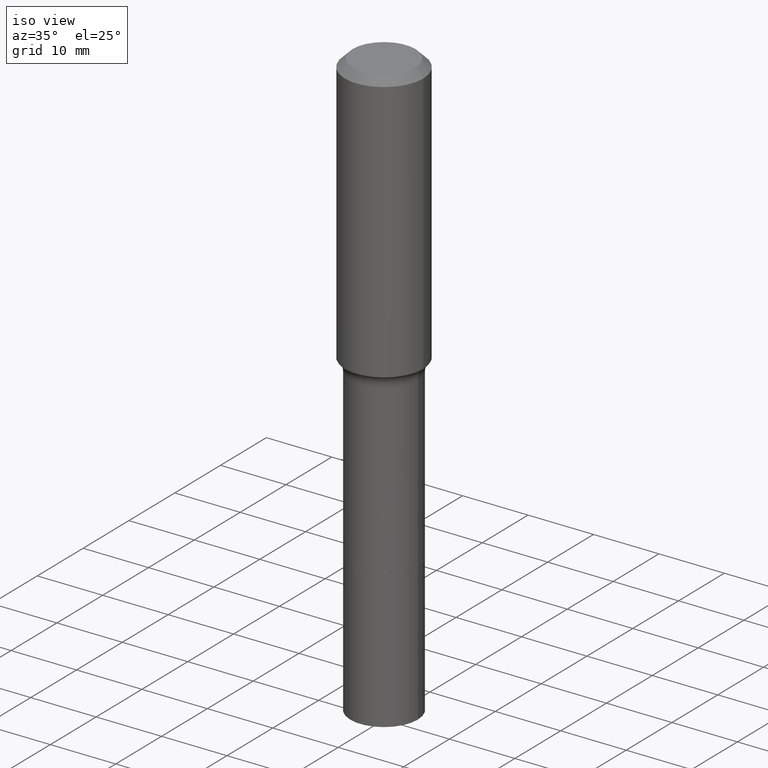
[diagram: clean part render]
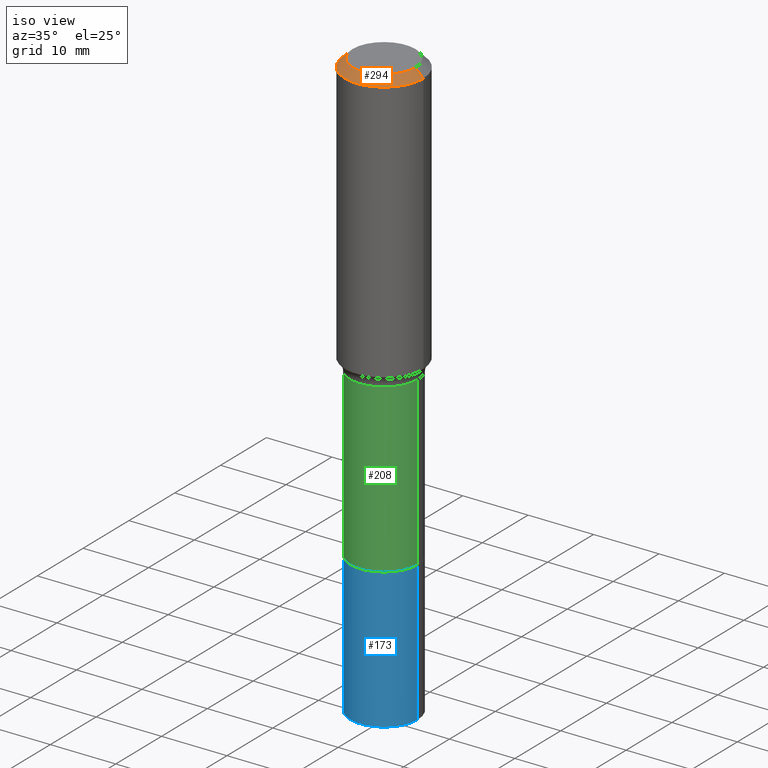
[diagram: same view with three faces highlighted in distinct colors, each labeled with its STEP entity id]
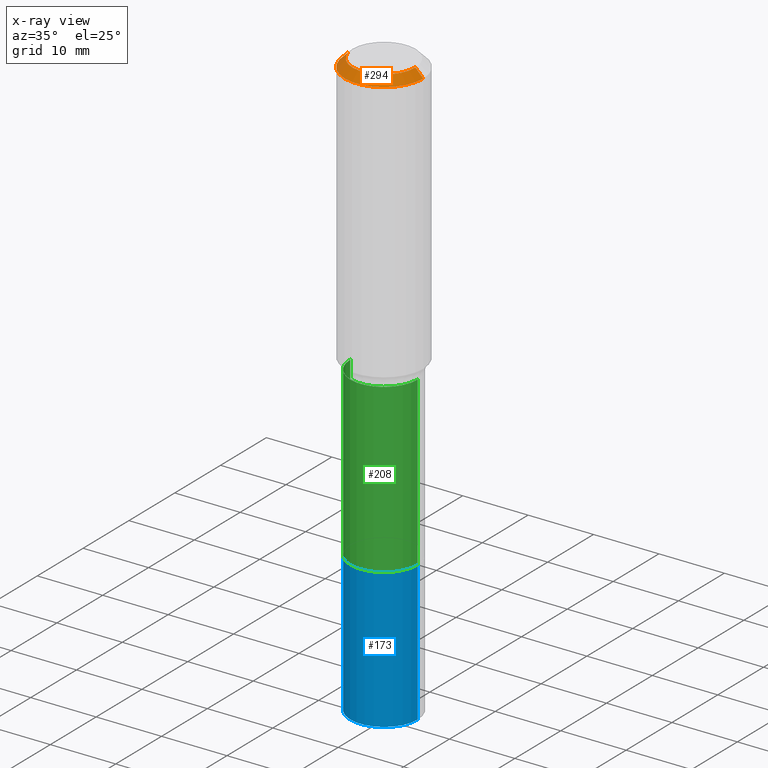
[diagram: x-ray of the same camera — body ghosted, the three highlighted faces saturated]
A machine part, iso view with three faces highlighted in distinct colors.
The next image is the same camera in x-ray (body ghosted, the three faces saturated) — at least one of them is partly hidden behind the body in this view.
Their STEP definitions:

[orange] entity #294 — the highlighted conical surface has half-angle 45 deg.
#15 = EDGE_CURVE ( 'NONE', #76, #119, #221, .T. ) ;
#16 = DIRECTION ( 'NONE',  ( -2.445468806185136597E-29, 3.491481338843145583E-15, 1.000000000000000000 ) ) ;
#18 = CARTESIAN_POINT ( 'NONE',  ( -9.427742298522546243E-47, 1.346031739168365344E-32, 3.855188123715862256E-18 ) ) ;
#32 = VERTEX_POINT ( 'NONE', #131 ) ;
#43 = VECTOR ( 'NONE', #138, 39.37007874015748143 ) ;
#47 = EDGE_CURVE ( 'NONE', #76, #32, #306, .T. ) ;
#51 = VERTEX_POINT ( 'NONE', #58 ) ;
#52 = EDGE_CURVE ( 'NONE', #32, #51, #513, .T. ) ;
#56 = DIRECTION ( 'NONE',  ( -2.445468806185136597E-29, 3.491481338843145583E-15, 1.000000000000000000 ) ) ;
#58 = CARTESIAN_POINT ( 'NONE',  ( 0.2361999999999999933, -1.814313362916447440E-15, -0.04724000000000027483 ) ) ;
#60 = DIRECTION ( 'NONE',  ( 1.000000000000000000, -6.982962677686266711E-15, 4.876185090822587894E-29 ) ) ;
#76 = VERTEX_POINT ( 'NONE', #259 ) ;
#119 = VERTEX_POINT ( 'NONE', #134 ) ;
#124 = AXIS2_PLACEMENT_3D ( 'NONE', #502, #56, #171 ) ;
#131 = CARTESIAN_POINT ( 'NONE',  ( -0.2361999999999999933, -1.242595281846650388E-15, -0.04724000000000027483 ) ) ;
#134 = CARTESIAN_POINT ( 'NONE',  ( 0.1889600000000000168, -1.540873453589747738E-15, 3.855188123725863225E-18 ) ) ;
#136 = LINE ( 'NONE', #383, #43 ) ;
#138 = DIRECTION ( 'NONE',  ( 0.7071067811865453523, -7.319954787623248157E-15, -0.7071067811865496822 ) ) ;
#149 = AXIS2_PLACEMENT_3D ( 'NONE', #18, #16, #60 ) ;
#158 = CONICAL_SURFACE ( 'NONE', #274, 0.2361999999999999933, 0.7853981633974452814 ) ;
#171 = DIRECTION ( 'NONE',  ( 1.000000000000000000, -6.982962677686266711E-15, 0.000000000000000000 ) ) ;
#179 = CARTESIAN_POINT ( 'NONE',  ( 1.155239464041865331E-30, -1.649375784469511612E-16, -0.04724000000000027483 ) ) ;
#221 = CIRCLE ( 'NONE', #149, 0.1889600000000000168 ) ;
#259 = CARTESIAN_POINT ( 'NONE',  ( -0.1889600000000000168, 1.401969416799070942E-15, 3.855188123706346622E-18 ) ) ;
#274 = AXIS2_PLACEMENT_3D ( 'NONE', #179, #314, #342 ) ;
#294 = ADVANCED_FACE ( 'NONE', ( #503 ), #158, .T. ) ;
#306 = LINE ( 'NONE', #504, #401 ) ;
#314 = DIRECTION ( 'NONE',  ( 2.445468806185136597E-29, -3.491481338843145583E-15, -1.000000000000000000 ) ) ;
#315 = ORIENTED_EDGE ( 'NONE', *, *, #15, .F. ) ;
#323 = EDGE_CURVE ( 'NONE', #119, #51, #136, .T. ) ;
#328 = ORIENTED_EDGE ( 'NONE', *, *, #323, .F. ) ;
#340 = DIRECTION ( 'NONE',  ( -0.7071067811865453523, 2.468850131082234184E-15, -0.7071067811865496822 ) ) ;
#342 = DIRECTION ( 'NONE',  ( -1.000000000000000000, 6.982962677686266711E-15, 0.000000000000000000 ) ) ;
#383 = CARTESIAN_POINT ( 'NONE',  ( 0.2361999999999999933, -1.785387205520586782E-15, -0.04724000000000027483 ) ) ;
#389 = ORIENTED_EDGE ( 'NONE', *, *, #47, .T. ) ;
#401 = VECTOR ( 'NONE', #340, 39.37007874015748143 ) ;
#425 = ORIENTED_EDGE ( 'NONE', *, *, #52, .T. ) ;
#502 = CARTESIAN_POINT ( 'NONE',  ( 1.155239464041865331E-30, -1.649375784469511612E-16, -0.04724000000000027483 ) ) ;
#503 = FACE_OUTER_BOUND ( 'NONE', #515, .T. ) ;
#504 = CARTESIAN_POINT ( 'NONE',  ( -0.2361999999999999933, 1.484438206022545019E-15, -0.04724000000000027483 ) ) ;
#513 = CIRCLE ( 'NONE', #124, 0.2361999999999999933 ) ;
#515 = EDGE_LOOP ( 'NONE', ( #328, #315, #389, #425 ) ) ;

[blue] entity #173 — the highlighted cylindrical surface (partial cylindrical patch) has radius 5.1499 mm, axis along (-0, 0, 1).
#10 = ORIENTED_EDGE ( 'NONE', *, *, #190, .T. ) ;
#21 = AXIS2_PLACEMENT_3D ( 'NONE', #91, #139, #220 ) ;
#23 = LINE ( 'NONE', #311, #382 ) ;
#24 = EDGE_CURVE ( 'NONE', #317, #478, #255, .T. ) ;
#27 = CARTESIAN_POINT ( 'NONE',  ( 8.665029620955794069E-29, -1.237136582792291707E-14, -3.543299999999999894 ) ) ;
#29 = ORIENTED_EDGE ( 'NONE', *, *, #24, .F. ) ;
#75 = EDGE_CURVE ( 'NONE', #409, #317, #23, .T. ) ;
#91 = CARTESIAN_POINT ( 'NONE',  ( 6.603499417341723147E-29, -9.428047059278143727E-15, -2.700299999999999478 ) ) ;
#94 = CIRCLE ( 'NONE', #230, 0.2027500000000002078 ) ;
#139 = DIRECTION ( 'NONE',  ( -2.445468806185136597E-29, 3.491481338843145583E-15, 1.000000000000000000 ) ) ;
#140 = DIRECTION ( 'NONE',  ( 1.000000000000000000, -6.982962677686269866E-15, 0.000000000000000000 ) ) ;
#145 = VERTEX_POINT ( 'NONE', #280 ) ;
#173 = ADVANCED_FACE ( 'NONE', ( #402 ), #238, .T. ) ;
#190 = EDGE_CURVE ( 'NONE', #145, #478, #252, .T. ) ;
#202 = DIRECTION ( 'NONE',  ( 1.000000000000000000, -6.982962677686262766E-15, 0.000000000000000000 ) ) ;
#209 = CARTESIAN_POINT ( 'NONE',  ( 6.603499417341723147E-29, -9.428047059278143727E-15, -2.700299999999999478 ) ) ;
#220 = DIRECTION ( 'NONE',  ( 1.000000000000000000, -6.982962677686266711E-15, 0.000000000000000000 ) ) ;
#230 = AXIS2_PLACEMENT_3D ( 'NONE', #27, #424, #140 ) ;
#236 = EDGE_LOOP ( 'NONE', ( #453, #517, #10, #29 ) ) ;
#238 = CYLINDRICAL_SURFACE ( 'NONE', #338, 0.2027500000000001246 ) ;
#252 = LINE ( 'NONE', #412, #395 ) ;
#255 = CIRCLE ( 'NONE', #21, 0.2027500000000000135 ) ;
#280 = CARTESIAN_POINT ( 'NONE',  ( 0.2027500000000002078, -1.378716151082380932E-14, -3.543299999999999894 ) ) ;
#285 = EDGE_CURVE ( 'NONE', #409, #145, #94, .T. ) ;
#290 = DIRECTION ( 'NONE',  ( -2.445468806185136597E-29, 3.491481338843145583E-15, 1.000000000000000000 ) ) ;
#311 = CARTESIAN_POINT ( 'NONE',  ( -0.2027500000000001246, -7.987421662524539123E-15, -2.700299999999999478 ) ) ;
#317 = VERTEX_POINT ( 'NONE', #506 ) ;
#338 = AXIS2_PLACEMENT_3D ( 'NONE', #209, #290, #202 ) ;
#356 = CARTESIAN_POINT ( 'NONE',  ( 0.2027500000000000135, -1.084384274217903440E-14, -2.700299999999999478 ) ) ;
#382 = VECTOR ( 'NONE', #417, 39.37007874015748143 ) ;
#395 = VECTOR ( 'NONE', #452, 39.37007874015748143 ) ;
#402 = FACE_OUTER_BOUND ( 'NONE', #236, .T. ) ;
#409 = VERTEX_POINT ( 'NONE', #470 ) ;
#412 = CARTESIAN_POINT ( 'NONE',  ( 0.2027500000000001246, -1.084384274217903440E-14, -2.700299999999999478 ) ) ;
#417 = DIRECTION ( 'NONE',  ( -2.445468806185136877E-29, 3.491481338843145188E-15, 1.000000000000000000 ) ) ;
#424 = DIRECTION ( 'NONE',  ( -2.445468806185136597E-29, 3.491481338843145583E-15, 1.000000000000000000 ) ) ;
#452 = DIRECTION ( 'NONE',  ( -2.445468806185136877E-29, 3.491481338843145188E-15, 1.000000000000000000 ) ) ;
#453 = ORIENTED_EDGE ( 'NONE', *, *, #75, .F. ) ;
#470 = CARTESIAN_POINT ( 'NONE',  ( -0.2027500000000002078, -9.459081046846922641E-15, -3.543299999999999894 ) ) ;
#478 = VERTEX_POINT ( 'NONE', #356 ) ;
#506 = CARTESIAN_POINT ( 'NONE',  ( -0.2027500000000000135, -9.459081046846924219E-15, -2.700299999999999478 ) ) ;
#517 = ORIENTED_EDGE ( 'NONE', *, *, #285, .T. ) ;

[green] entity #208 — the highlighted cylindrical surface (partial cylindrical patch) has radius 5.1498 mm, axis along (-0, 0, 1).
#5 = CARTESIAN_POINT ( 'NONE',  ( 0.2027499999999999303, -1.415795682900890079E-15, 9.886448412926257550E-30 ) ) ;
#9 = DIRECTION ( 'NONE',  ( 1.000000000000000000, -6.982962677686266711E-15, 0.000000000000000000 ) ) ;
#17 = DIRECTION ( 'NONE',  ( 1.000000000000000000, -6.982962677686266711E-15, 4.876176775795936353E-29 ) ) ;
#33 = CARTESIAN_POINT ( 'NONE',  ( 4.140912329513291253E-29, -5.912125351063097489E-15, -1.693299999999999583 ) ) ;
#46 = CARTESIAN_POINT ( 'NONE',  ( 0.000000000000000000, 0.000000000000000000, 0.000000000000000000 ) ) ;
#50 = FACE_OUTER_BOUND ( 'NONE', #247, .T. ) ;
#54 = AXIS2_PLACEMENT_3D ( 'NONE', #206, #368, #9 ) ;
#59 = LINE ( 'NONE', #195, #379 ) ;
#79 = ORIENTED_EDGE ( 'NONE', *, *, #156, .F. ) ;
#156 = EDGE_CURVE ( 'NONE', #359, #444, #475, .T. ) ;
#161 = DIRECTION ( 'NONE',  ( -2.445468806185136877E-29, 3.491481338843145188E-15, 1.000000000000000000 ) ) ;
#183 = CARTESIAN_POINT ( 'NONE',  ( -0.2027499999999998748, -6.228587938082306830E-15, -1.693299999999999583 ) ) ;
#195 = CARTESIAN_POINT ( 'NONE',  ( -0.2027499999999999303, 1.440625396753602631E-15, -9.973140895491818136E-30 ) ) ;
#200 = VECTOR ( 'NONE', #161, 39.37007874015748143 ) ;
#206 = CARTESIAN_POINT ( 'NONE',  ( 6.602276682938630345E-29, -9.426301318608721435E-15, -2.699799999999999311 ) ) ;
#207 = VERTEX_POINT ( 'NONE', #336 ) ;
#208 = ADVANCED_FACE ( 'NONE', ( #50 ), #377, .T. ) ;
#210 = DIRECTION ( 'NONE',  ( -2.445468806185136597E-29, 3.491481338843145583E-15, 1.000000000000000000 ) ) ;
#246 = EDGE_CURVE ( 'NONE', #207, #444, #400, .T. ) ;
#247 = EDGE_LOOP ( 'NONE', ( #460, #442, #276, #79 ) ) ;
#254 = EDGE_CURVE ( 'NONE', #327, #207, #284, .T. ) ;
#267 = DIRECTION ( 'NONE',  ( 1.000000000000000000, -6.982962677686266711E-15, 0.000000000000000000 ) ) ;
#276 = ORIENTED_EDGE ( 'NONE', *, *, #246, .T. ) ;
#284 = CIRCLE ( 'NONE', #54, 0.2027500000000000135 ) ;
#310 = CARTESIAN_POINT ( 'NONE',  ( -0.2027500000000000413, -6.228587938082304464E-15, -2.699799999999999311 ) ) ;
#327 = VERTEX_POINT ( 'NONE', #310 ) ;
#336 = CARTESIAN_POINT ( 'NONE',  ( 0.2027500000000000135, -1.084209700150961210E-14, -2.699799999999999311 ) ) ;
#359 = VERTEX_POINT ( 'NONE', #183 ) ;
#368 = DIRECTION ( 'NONE',  ( -2.445468806185136597E-29, 3.491481338843145583E-15, 1.000000000000000000 ) ) ;
#377 = CYLINDRICAL_SURFACE ( 'NONE', #390, 0.2027499999999999303 ) ;
#379 = VECTOR ( 'NONE', #394, 39.37007874015748143 ) ;
#390 = AXIS2_PLACEMENT_3D ( 'NONE', #46, #210, #17 ) ;
#394 = DIRECTION ( 'NONE',  ( -2.445468806185136877E-29, 3.491481338843145188E-15, 1.000000000000000000 ) ) ;
#400 = LINE ( 'NONE', #5, #200 ) ;
#419 = CARTESIAN_POINT ( 'NONE',  ( 0.2027499999999998748, -7.327921033963987370E-15, -1.693299999999999583 ) ) ;
#442 = ORIENTED_EDGE ( 'NONE', *, *, #254, .T. ) ;
#444 = VERTEX_POINT ( 'NONE', #419 ) ;
#451 = EDGE_CURVE ( 'NONE', #327, #359, #59, .T. ) ;
#460 = ORIENTED_EDGE ( 'NONE', *, *, #451, .F. ) ;
#473 = DIRECTION ( 'NONE',  ( -2.445468806185136597E-29, 3.491481338843145583E-15, 1.000000000000000000 ) ) ;
#475 = CIRCLE ( 'NONE', #492, 0.2027499999999998748 ) ;
#492 = AXIS2_PLACEMENT_3D ( 'NONE', #33, #473, #267 ) ;